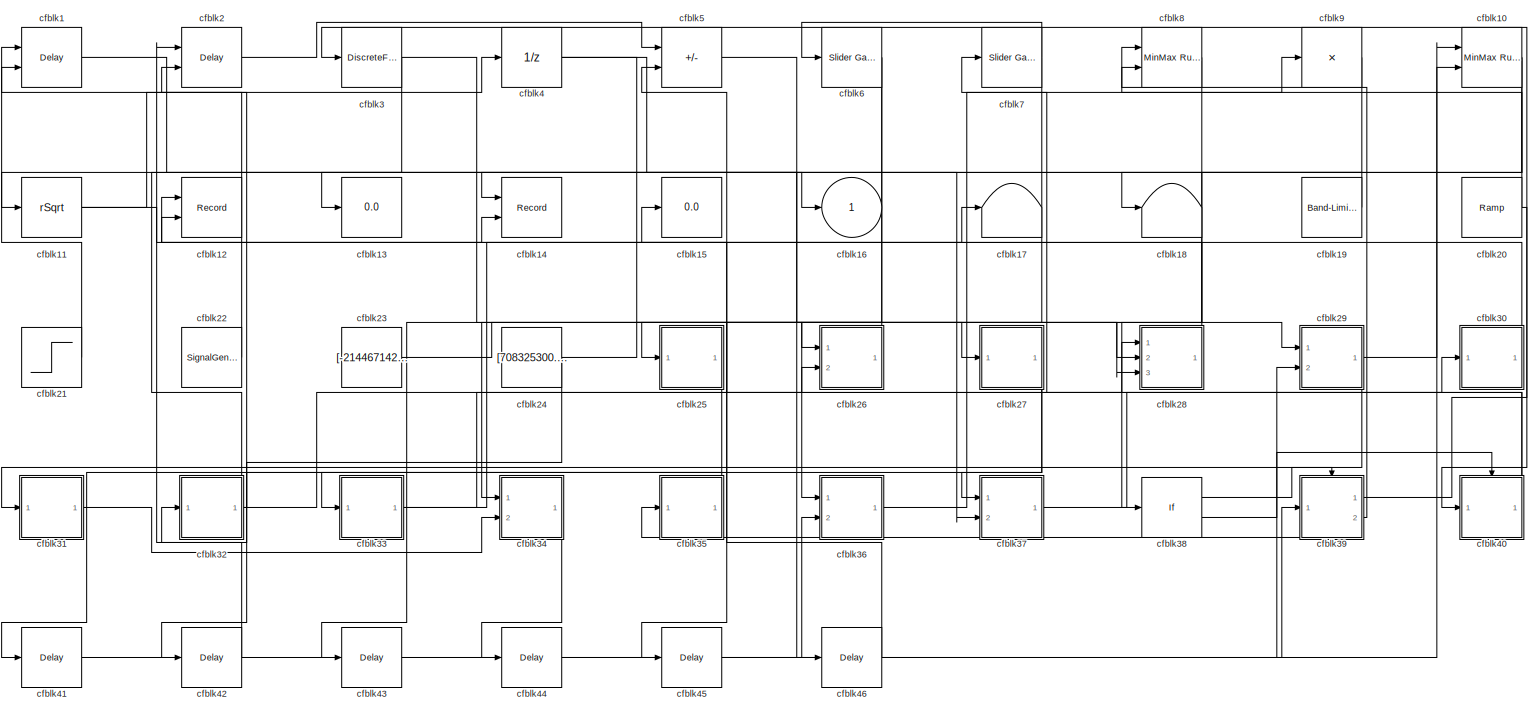
[diagram: root canvas - part 1/1, most of the canvas]
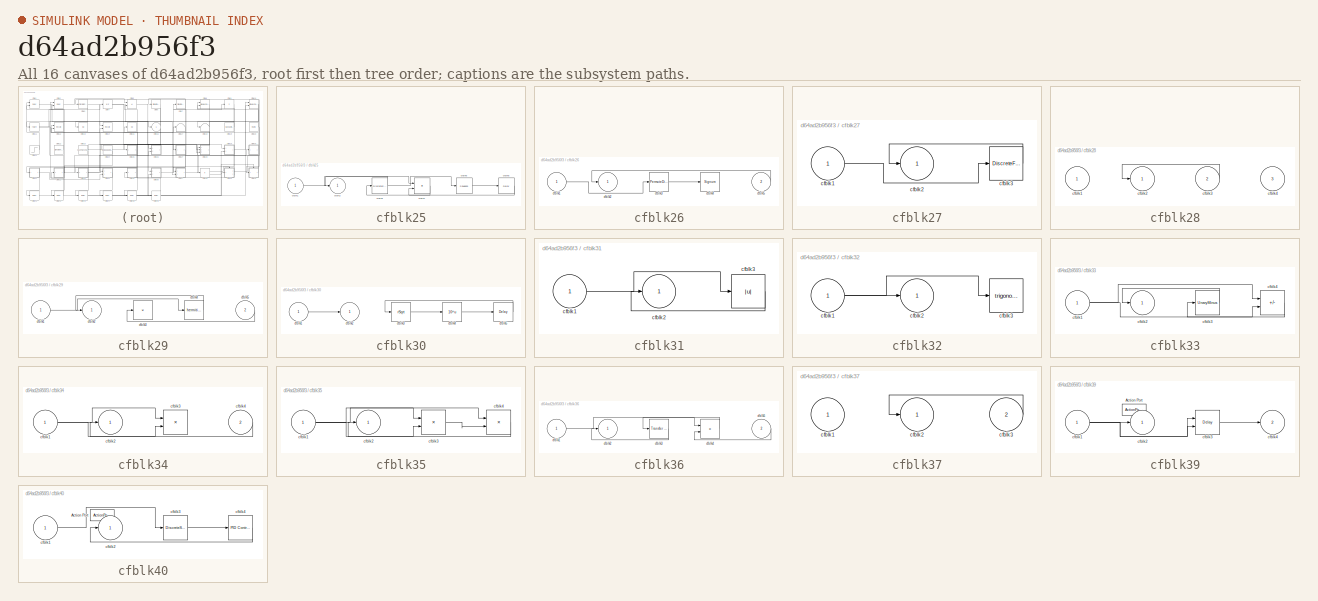
[diagram: thumbnail index - all 16 canvases of the model, root first then tree order]
MODEL slx_d64ad2b956f3
KIND model
CONFIG AbsTol = auto
CONFIG EnableMultiTasking = off
CONFIG FixedStep = auto
CONFIG MaxStep = auto
CONFIG MinStep = auto
CONFIG RelTol = 1e-3
CONFIG SampleTimeConstraint = Unconstrained
CONFIG SolverName = VariableStepAuto
CONFIG StartTime = 0.0
CONFIG StopTime = 10.0
BLOCK [Delay] cfblk1
  DelayLengthSource = Input port
  InputPortMap = u0,p1
  Ports = [2, 1]
  SampleTime = 1
BLOCK [Reference] cfblk10  REF=simulink/Math
Operations/MinMax
Running
Resettable
  Ports = [2, 1]
  SourceBlock = simulink/Math\nOperations/MinMax\nRunning\nResettable
  SourceProductBaseCode = SL
  SourceType = MinMax Running Resettable
BLOCK [Sqrt] cfblk11
  AlgorithmType = Newton-Raphson
  Operator = rSqrt
BLOCK [Record] cfblk12
  CompatibilityTag = XY
  FileSettingsInternal = {"entries":[{"content":{"excelSettings":{"content":{},"type":"Streamout.ExcelSettings"}},"type":"Streamout.FileSettingStorage","uuid":"505898ed-d4a3-4d30-8da6-12d5b21d2fb4"}],"packageUris":["http://schema.mathworks.com/mf0/streamout_blocks/R2020a"],"version":"1.0"}
  Layout = [1 1]
  Ports = [2]
  SignalsInternal = {"entries":[{"content":{"signals":[{"content":{"blockPath":["sampleModel220/cfblk12"],"channel":[],"dimensions":[1],"domain":"sampleModel220/cfblk12","lineColor":"#a2142f","plots":[1],"port":1,"sid":[""],"signalID":8544,"signalName":"cfblk30"},"type":"RecordBlkView.Signal","uuid":"e1a81a9f-4be3-4ea0-9128-7e2e516ad1fd"},{"content":{"blockPath":["sampleModel220/cfblk12"],"channel":[],"dimensions":[1...<+383ch>
  VisualizationBindings = {"xyplotplugin":{"info":[{"series":[{"bindingParametersList":[{"parameter":"X-Axis","signalID":8544,"signalName":"cfblk30"},{"parameter":"Y-Axis","signalID":8548,"signalName":"cfblk28"}],"seriesID":16550}],"subplotID":1}]}}
BLOCK [Display] cfblk13
  Decimation = 1
  Ports = [1]
BLOCK [Record] cfblk14
  CompatibilityTag = XY
  FileSettingsInternal = {"entries":[{"content":{"excelSettings":{"content":{},"type":"Streamout.ExcelSettings"}},"type":"Streamout.FileSettingStorage","uuid":"e3aca0db-b8d3-4546-a596-c9f2e1ed8f43"}],"packageUris":["http://schema.mathworks.com/mf0/streamout_blocks/R2020a"],"version":"1.0"}
  Layout = [1 1]
  Ports = [2]
  SignalsInternal = {"entries":[{"content":{"signals":[{"content":{"blockPath":["sampleModel220/cfblk14"],"channel":[],"dimensions":[1],"domain":"sampleModel220/cfblk14","lineColor":"#a2142f","plots":[1],"port":1,"sid":[""],"signalID":8552,"signalName":"cfblk6"},"type":"RecordBlkView.Signal","uuid":"0c1b1ec7-2b87-4732-9099-794a9beb898d"},{"content":{"blockPath":["sampleModel220/cfblk14"],"channel":[],"dimensions":[1,...<+384ch>
  VisualizationBindings = {"xyplotplugin":{"info":[{"series":[{"bindingParametersList":[{"parameter":"X-Axis","signalID":8552,"signalName":"cfblk6"},{"parameter":"Y-Axis","signalID":8556,"signalName":"cfblk11"}],"seriesID":42241}],"subplotID":1}]}}
BLOCK [Display] cfblk15
  Decimation = 1
  Ports = [1]
BLOCK [Outport] cfblk16
BLOCK [Terminator] cfblk17
BLOCK [Terminator] cfblk18
BLOCK [Reference] cfblk19  REF=simulink/Sources/Band-Limited
White Noise
  Ports = [0, 1]
  SourceBlock = simulink/Sources/Band-Limited\nWhite Noise
  SourceProductBaseCode = SL
  SourceType = Band-Limited White Noise.
BLOCK [Delay] cfblk2
  InputPortMap = u0,e6
  Ports = [2, 1]
  SampleTime = 1
  ShowEnablePort = on
BLOCK [Reference] cfblk20  REF=simulink/Sources/Ramp
  Ports = [0, 1]
  SourceBlock = simulink/Sources/Ramp
  SourceProductBaseCode = SL
  SourceType = Ramp
BLOCK [Step] cfblk21
  After = [489802608.649629]
  Before = [104028622.435164]
  SampleTime = 0
  Time = [43.000000]
BLOCK [SignalGenerator] cfblk22
  Amplitude = [831218374.420784]
  Ports = [0, 1]
  Units = rad/sec
BLOCK [Constant] cfblk23
  SampleTime = 1
  Value = [-214467142.157713]
BLOCK [Constant] cfblk24
  SampleTime = 1
  Value = [708325300.053540]
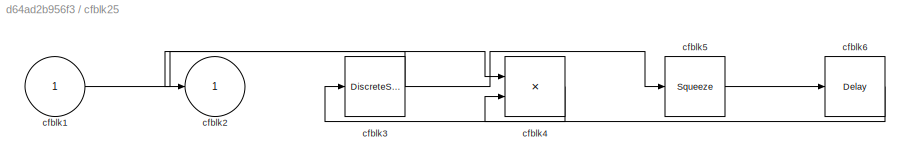
BLOCK [SubSystem] cfblk25
  Ports = [1, 1]
  RequestExecContextInheritance = off
BLOCK [Inport] cfblk25/cfblk1
BLOCK [Outport] cfblk25/cfblk2
BLOCK [DiscreteStateSpace] cfblk25/cfblk3
BLOCK [Product] cfblk25/cfblk4
  Ports = [2, 1]
BLOCK [Squeeze] cfblk25/cfblk5
BLOCK [Delay] cfblk25/cfblk6
  InputPortMap = u0
  Ports = [1, 1]
  SampleTime = 1
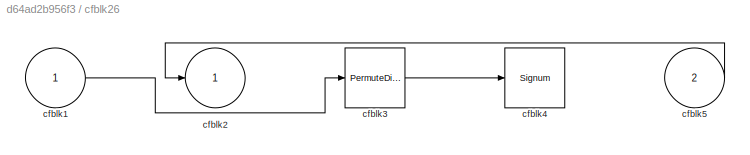
BLOCK [SubSystem] cfblk26
  Ports = [2, 1]
  RequestExecContextInheritance = off
BLOCK [Inport] cfblk26/cfblk1
BLOCK [Outport] cfblk26/cfblk2
BLOCK [PermuteDimensions] cfblk26/cfblk3
BLOCK [Signum] cfblk26/cfblk4
BLOCK [Inport] cfblk26/cfblk5
  Port = 2
BLOCK [SubSystem] cfblk27
  Ports = [1, 1]
  RequestExecContextInheritance = off
BLOCK [Inport] cfblk27/cfblk1
BLOCK [Outport] cfblk27/cfblk2
BLOCK [DiscreteFir] cfblk27/cfblk3
  InputPortMap = u0
  OutputPortMap = o0
  Ports = [1, 1]
  SampleTime = 1
BLOCK [SubSystem] cfblk28
  Ports = [3, 1]
  RequestExecContextInheritance = off
BLOCK [Inport] cfblk28/cfblk1
BLOCK [Outport] cfblk28/cfblk2
BLOCK [Inport] cfblk28/cfblk3
  Port = 2
BLOCK [Inport] cfblk28/cfblk4
  Port = 3
BLOCK [SubSystem] cfblk29
  Ports = [2, 1]
  RequestExecContextInheritance = off
BLOCK [Inport] cfblk29/cfblk1
BLOCK [Outport] cfblk29/cfblk2
BLOCK [Product] cfblk29/cfblk3
  Inputs = *
  Ports = [1, 1]
BLOCK [Math] cfblk29/cfblk4
  Operator = hermitian
  Ports = [1, 1]
BLOCK [Inport] cfblk29/cfblk5
  Port = 2
BLOCK [DiscreteFir] cfblk3
  InputPortMap = u0
  OutputPortMap = o0
  Ports = [1, 1]
  SampleTime = 1
BLOCK [SubSystem] cfblk30
  Ports = [1, 1]
  RequestExecContextInheritance = off
BLOCK [Inport] cfblk30/cfblk1
BLOCK [Outport] cfblk30/cfblk2
BLOCK [Sqrt] cfblk30/cfblk3
  AlgorithmType = Newton-Raphson
  Operator = rSqrt
BLOCK [Math] cfblk30/cfblk4
  Operator = 10^u
  Ports = [1, 1]
BLOCK [Delay] cfblk30/cfblk5
  InputPortMap = u0
  Ports = [1, 1]
  SampleTime = 1
BLOCK [SubSystem] cfblk31
  Ports = [1, 1]
  RequestExecContextInheritance = off
BLOCK [Inport] cfblk31/cfblk1
BLOCK [Outport] cfblk31/cfblk2
BLOCK [Abs] cfblk31/cfblk3
  SaturateOnIntegerOverflow = off
BLOCK [SubSystem] cfblk32
  Ports = [1, 1]
  RequestExecContextInheritance = off
BLOCK [Inport] cfblk32/cfblk1
BLOCK [Outport] cfblk32/cfblk2
BLOCK [Trigonometry] cfblk32/cfblk3
  Ports = [1, 1]
BLOCK [SubSystem] cfblk33
  Ports = [1, 1]
  RequestExecContextInheritance = off
BLOCK [Inport] cfblk33/cfblk1
BLOCK [Outport] cfblk33/cfblk2
BLOCK [UnaryMinus] cfblk33/cfblk3
BLOCK [Sum] cfblk33/cfblk4
  IconShape = rectangular
  Inputs = -+
  Ports = [2, 1]
BLOCK [SubSystem] cfblk34
  Ports = [2, 1]
  RequestExecContextInheritance = off
BLOCK [Inport] cfblk34/cfblk1
BLOCK [Outport] cfblk34/cfblk2
BLOCK [Product] cfblk34/cfblk3
  Ports = [2, 1]
BLOCK [Inport] cfblk34/cfblk4
  Port = 2
BLOCK [SubSystem] cfblk35
  Ports = [1, 1]
  RequestExecContextInheritance = off
BLOCK [Inport] cfblk35/cfblk1
BLOCK [Outport] cfblk35/cfblk2
BLOCK [Product] cfblk35/cfblk3
  Inputs = **
  Ports = [2, 1]
BLOCK [Product] cfblk35/cfblk4
  Inputs = **
  Ports = [2, 1]
BLOCK [SubSystem] cfblk36
  Ports = [2, 1]
  RequestExecContextInheritance = off
BLOCK [Inport] cfblk36/cfblk1
BLOCK [Outport] cfblk36/cfblk2
BLOCK [Reference] cfblk36/cfblk3  REF=simulink/Discrete/Transfer Fcn
First Order
  Ports = [1, 1]
  SourceBlock = simulink/Discrete/Transfer Fcn\nFirst Order
  SourceProductBaseCode = SL
  SourceType = First Order Transfer Fcn
BLOCK [Product] cfblk36/cfblk4
  Inputs = **
  Ports = [2, 1]
BLOCK [Inport] cfblk36/cfblk5
  Port = 2
BLOCK [SubSystem] cfblk37
  Ports = [2, 1]
  RequestExecContextInheritance = off
BLOCK [Inport] cfblk37/cfblk1
BLOCK [Outport] cfblk37/cfblk2
BLOCK [Inport] cfblk37/cfblk3
  Port = 2
BLOCK [If] cfblk38
  IfExpression = u1 >= 0
  Ports = [1, 2]
  SampleTime = 1
BLOCK [SubSystem] cfblk39
  Ports = [1, 2, 0, 0, 0, 0, 0, 1]
  RequestExecContextInheritance = off
  TreatAsAtomicUnit = on
BLOCK [ActionPort] cfblk39/Action Port
  ActionPortLabel = if(u1 >= 0)
BLOCK [Inport] cfblk39/cfblk1
BLOCK [Outport] cfblk39/cfblk2
BLOCK [Delay] cfblk39/cfblk3
  DelayLengthSource = Input port
  InputPortMap = u0,p1
  Ports = [2, 1]
BLOCK [Outport] cfblk39/cfblk4
  Port = 2
BLOCK [UnitDelay] cfblk4
  HasFrameUpgradeWarning = on
BLOCK [SubSystem] cfblk40
  Ports = [1, 1, 0, 0, 0, 0, 0, 1]
  RequestExecContextInheritance = off
  TreatAsAtomicUnit = on
BLOCK [ActionPort] cfblk40/Action Port
  ActionPortLabel = else
BLOCK [Inport] cfblk40/cfblk1
BLOCK [Outport] cfblk40/cfblk2
BLOCK [DiscreteStateSpace] cfblk40/cfblk3
  SampleTime = -1
BLOCK [Reference] cfblk40/cfblk4  REF=slpidlib/PID Controller
  Ports = [1, 1]
  SourceBlock = slpidlib/PID Controller
  SourceProductBaseCode = SL
  SourceType = PID 1dof
BLOCK [Delay] cfblk41
  InputPortMap = u0
  Ports = [1, 1]
  SampleTime = 1
BLOCK [Delay] cfblk42
  InputPortMap = u0
  Ports = [1, 1]
  SampleTime = 1
BLOCK [Delay] cfblk43
  InputPortMap = u0
  Ports = [1, 1]
  SampleTime = 1
BLOCK [Delay] cfblk44
  InputPortMap = u0
  Ports = [1, 1]
  SampleTime = 1
BLOCK [Delay] cfblk45
  InputPortMap = u0
  Ports = [1, 1]
  SampleTime = 1
BLOCK [Delay] cfblk46
  InputPortMap = u0
  Ports = [1, 1]
  SampleTime = 1
BLOCK [Sum] cfblk5
  IconShape = rectangular
  Inputs = --
  Ports = [2, 1]
BLOCK [Reference] cfblk6  REF=simulink/Math
Operations/Slider
Gain
  Ports = [1, 1]
  SourceBlock = simulink/Math\nOperations/Slider\nGain
  SourceProductBaseCode = SL
  SourceType = Slider Gain
BLOCK [Reference] cfblk7  REF=simulink/Math
Operations/Slider
Gain
  Ports = [1, 1]
  SourceBlock = simulink/Math\nOperations/Slider\nGain
  SourceProductBaseCode = SL
  SourceType = Slider Gain
BLOCK [Reference] cfblk8  REF=simulink/Math
Operations/MinMax
Running
Resettable
  Ports = [2, 1]
  SourceBlock = simulink/Math\nOperations/MinMax\nRunning\nResettable
  SourceProductBaseCode = SL
  SourceType = MinMax Running Resettable
BLOCK [Product] cfblk9
  Inputs = *
  Ports = [1, 1]
NET cfblk10:1 -> cfblk11:1, cfblk36:1
NET cfblk11:1 -> cfblk14:2, cfblk4:1
LINE cfblk19:1 -> cfblk18:1
LINE cfblk1:1 -> cfblk37:2
NET cfblk20:1 -> cfblk40:1, cfblk8:1
LINE cfblk21:1 -> cfblk1:1
LINE cfblk22:1 -> cfblk1:2
LINE cfblk23:1 -> cfblk26:1
NET cfblk24:1 -> cfblk28:2, cfblk32:1
LINE cfblk25/cfblk1:1 -> cfblk25/cfblk4:1
NET cfblk25/cfblk3:1 -> cfblk25/cfblk2:1, cfblk25/cfblk5:1
LINE cfblk25/cfblk4:1 -> cfblk25/cfblk3:1
LINE cfblk25/cfblk5:1 -> cfblk25/cfblk6:1
LINE cfblk25/cfblk6:1 -> cfblk25/cfblk4:2
LINE cfblk25:1 -> cfblk42:1
LINE cfblk26/cfblk1:1 -> cfblk26/cfblk3:1
LINE cfblk26/cfblk3:1 -> cfblk26/cfblk4:1
LINE cfblk26/cfblk5:1 -> cfblk26/cfblk2:1
LINE cfblk26:1 -> cfblk25:1
LINE cfblk27/cfblk1:1 -> cfblk27/cfblk3:1
LINE cfblk27/cfblk3:1 -> cfblk27/cfblk2:1
NET cfblk27:1 -> cfblk37:1, cfblk41:1
LINE cfblk28/cfblk3:1 -> cfblk28/cfblk2:1
LINE cfblk28:1 -> cfblk12:2
LINE cfblk29/cfblk1:1 -> cfblk29/cfblk4:1
LINE cfblk29/cfblk4:1 -> cfblk29/cfblk2:1
LINE cfblk29/cfblk5:1 -> cfblk29/cfblk3:1
NET cfblk29:1 -> cfblk10:1, cfblk31:1
LINE cfblk2:1 -> cfblk5:1
LINE cfblk30/cfblk1:1 -> cfblk30/cfblk2:1
LINE cfblk30/cfblk3:1 -> cfblk30/cfblk4:1
LINE cfblk30/cfblk4:1 -> cfblk30/cfblk5:1
LINE cfblk30/cfblk5:1 -> cfblk30/cfblk3:1
LINE cfblk30:1 -> cfblk12:1
LINE cfblk31/cfblk1:1 -> cfblk31/cfblk3:1
LINE cfblk31/cfblk3:1 -> cfblk31/cfblk2:1
LINE cfblk31:1 -> cfblk34:2
NET cfblk32/cfblk1:1 -> cfblk32/cfblk2:1, cfblk32/cfblk3:1
NET cfblk32:1 -> cfblk16:1, cfblk28:1, cfblk2:2
NET cfblk33/cfblk1:1 -> cfblk33/cfblk4:1, cfblk33/cfblk4:2
LINE cfblk33/cfblk3:1 -> cfblk33/cfblk2:1
LINE cfblk33/cfblk4:1 -> cfblk33/cfblk3:1
NET cfblk33:1 -> cfblk17:1, cfblk26:2
NET cfblk34/cfblk1:1 -> cfblk34/cfblk3:1, cfblk34/cfblk3:2
LINE cfblk34/cfblk4:1 -> cfblk34/cfblk2:1
LINE cfblk34:1 -> cfblk44:1
NET cfblk35/cfblk1:1 -> cfblk35/cfblk3:1, cfblk35/cfblk3:2, cfblk35/cfblk4:1
LINE cfblk35/cfblk3:1 -> cfblk35/cfblk4:2
LINE cfblk35/cfblk4:1 -> cfblk35/cfblk2:1
LINE cfblk35:1 -> cfblk33:1
LINE cfblk36/cfblk1:1 -> cfblk36/cfblk4:1
LINE cfblk36/cfblk3:1 -> cfblk36/cfblk2:1
LINE cfblk36/cfblk4:1 -> cfblk36/cfblk3:1
LINE cfblk36/cfblk5:1 -> cfblk36/cfblk4:2
LINE cfblk36:1 -> cfblk9:1
LINE cfblk37/cfblk3:1 -> cfblk37/cfblk2:1
LINE cfblk37:1 -> cfblk30:1
LINE cfblk38:1 -> cfblk39:ifaction
LINE cfblk38:2 -> cfblk40:ifaction
NET cfblk39/cfblk1:1 -> cfblk39/cfblk2:1, cfblk39/cfblk3:1, cfblk39/cfblk3:2
LINE cfblk39/cfblk3:1 -> cfblk39/cfblk4:1
LINE cfblk39:1 -> cfblk3:1
NET cfblk39:2 -> cfblk35:1, cfblk8:2
NET cfblk3:1 -> cfblk13:1, cfblk27:1
LINE cfblk40/cfblk1:1 -> cfblk40/cfblk3:1
LINE cfblk40/cfblk3:1 -> cfblk40/cfblk4:1
LINE cfblk40/cfblk4:1 -> cfblk40/cfblk2:1
NET cfblk40:1 -> cfblk15:1, cfblk7:1
LINE cfblk41:1 -> cfblk29:2
LINE cfblk42:1 -> cfblk2:1
LINE cfblk43:1 -> cfblk39:1
LINE cfblk44:1 -> cfblk36:2
LINE cfblk45:1 -> cfblk10:2
LINE cfblk46:1 -> cfblk5:2
NET cfblk4:1 -> cfblk28:3, cfblk46:1
LINE cfblk5:1 -> cfblk29:1
NET cfblk6:1 -> cfblk14:1, cfblk34:1
NET cfblk7:1 -> cfblk45:1, cfblk6:1
LINE cfblk8:1 -> cfblk43:1
LINE cfblk9:1 -> cfblk38:1
note: NET lines group one-source signal fan-out (src -> all destinations, sorted); 1:1 wires keep LINE
